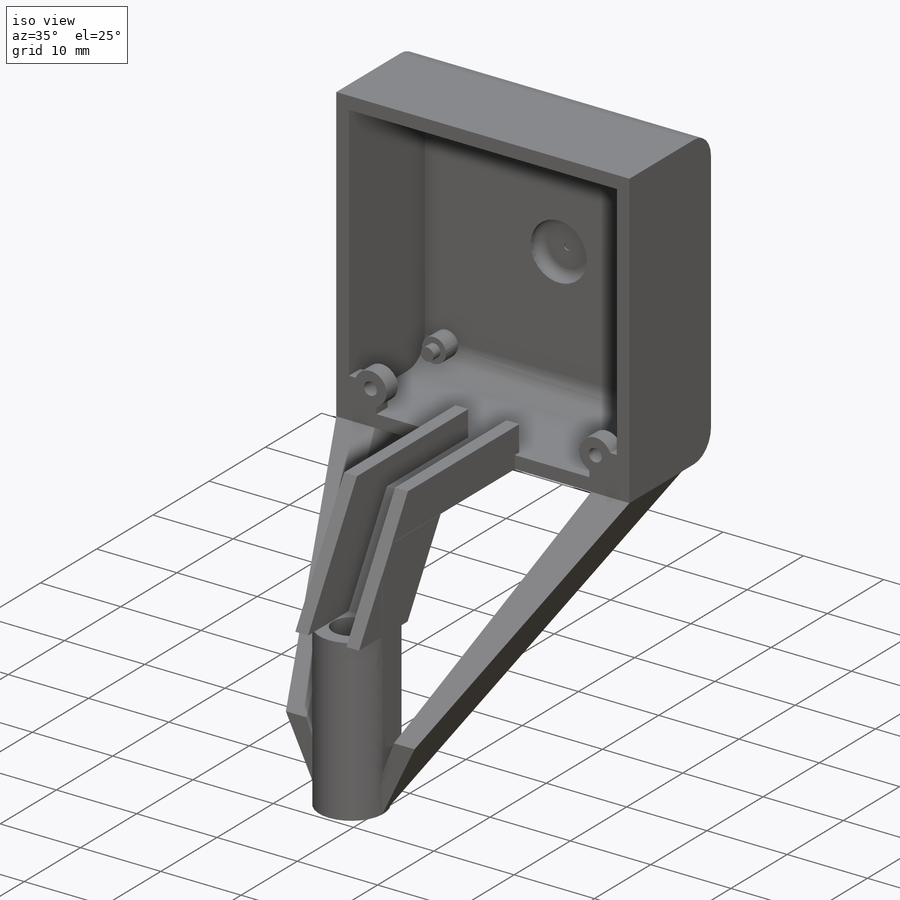
[diagram: iso view]
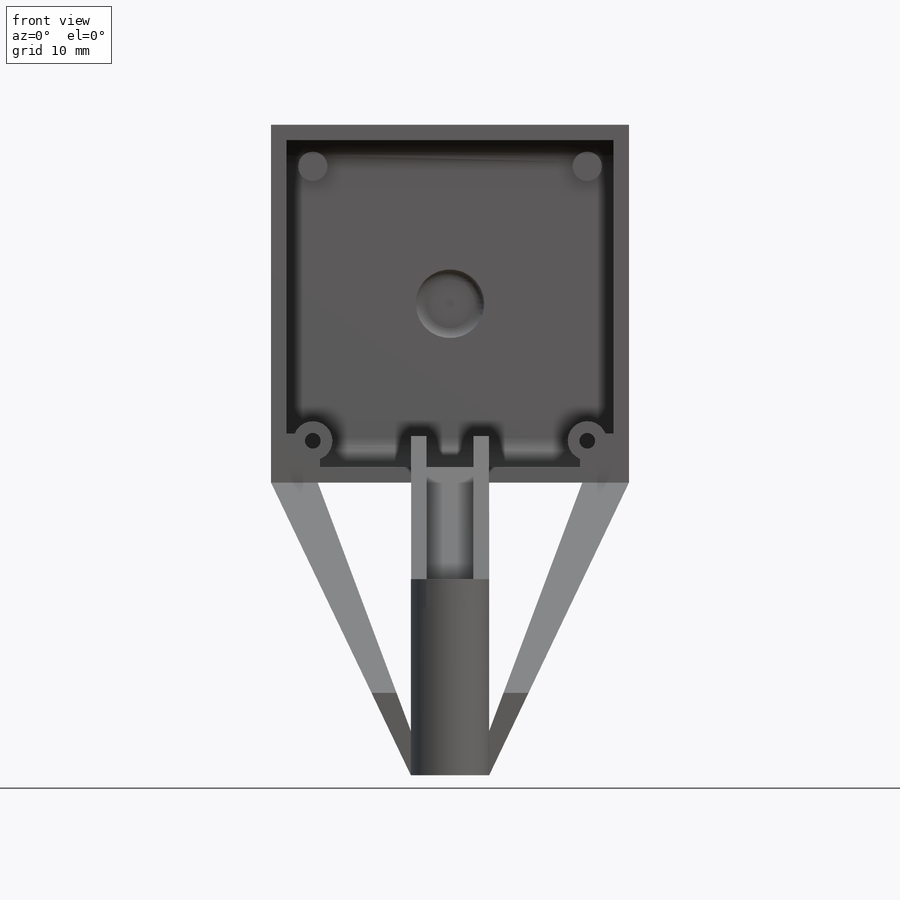
[diagram: front view]
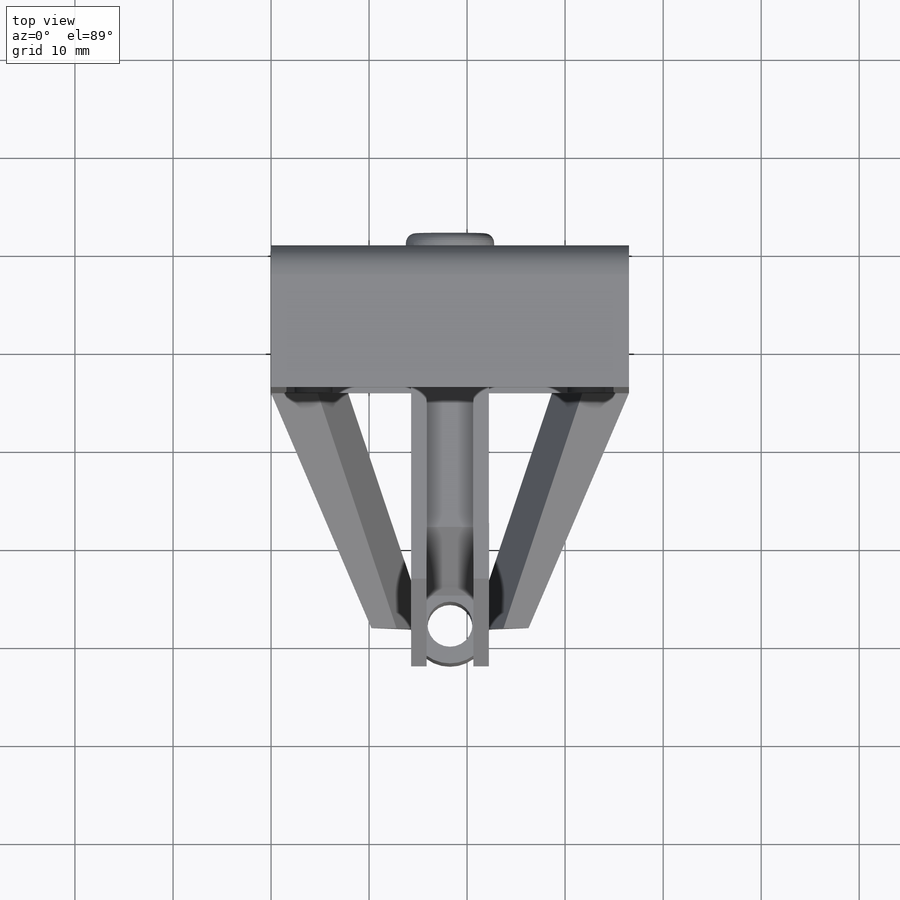
[diagram: top view]
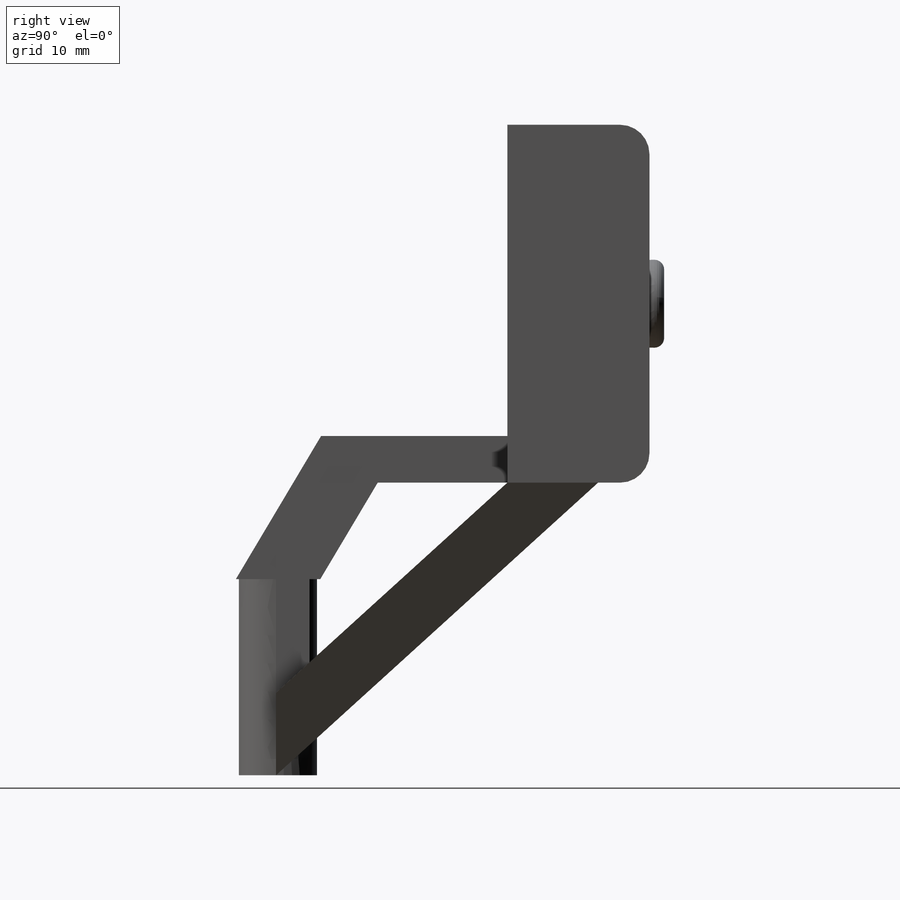
[diagram: right view]
SOLIDWORKS PART (.sldprt)
format: sldprt  version: not decoded by parser v0  size: 612,352 bytes
history: native  units: mm
features: sketch x23, extrude x12, cut_extrude x11, fillet x3, material x1 (+16 scaffold rows collapsed)
feature tree (66):
  scaffold x16  (default folders/planes/origin — collapsed)
  material  "Material <not specified>"
  sketch  "Sketch1"  dims[D1=36.5125mm]
  extrude  "Extrude1"  Depth=1mm
  sketch  "Sketch2"
  extrude  "Extrude2"  Depth=13.5mm
  fillet  "Fillet7"  Radius=3mm
  sketch  "Sketch5"  dims[D5=3.0mm D1=14.0mm D2=14.0mm D3=14.0mm D4=14.0mm]
  extrude  "Extrude5"  Depth=2.2mm
  sketch  "Sketch6"  dims[D1=0.9mm]
  extrude  "Extrude6"  Depth=1.2mm
  sketch  "Sketch7"  dims[D1=9.0mm]
  extrude  "Extrude7"  Depth=2.5mm
  sketch  "Sketch8"  dims[D1=7.0mm]
  cut_extrude  "Extrude9"  Depth=1.5mm
  fillet  "Fillet8"  Radius=1mm
  fillet  "Fillet10"  Radius=1mm
  sketch  "Sketch9"  dims[D1=~0.48236mm]
  cut_extrude  "Extrude10"  Depth=0.2mm
  sketch  "Sketch10"  dims[D1=5.0mm D2=5.0mm D3=5.0mm]
  extrude  "Extrude11"  Depth=2mm
  sketch  "Sketch11"
  extrude  "Extrude12"  Depth=19mm
  sketch  "Sketch13"  dims[D1=8.0mm]
  cut_extrude  "Extrude13"  [1 undecoded]
  sketch  "Sketch14"  dims[D1=7.4mm]
  extrude  "Extrude14"  Depth=17mm
  sketch  "Sketch15"
  cut_extrude  "Extrude15"  [1 undecoded]
  sketch  "Sketch16"  dims[D1=~23.390021mm]
  extrude  "Extrude16"  Depth=20mm
  sketch  "Sketch17"
  extrude  "Extrude17"  Depth=13.5mm
  sketch  "Sketch18"
  extrude  "Extrude18"  [1 undecoded]
  sketch  "Sketch19"
  cut_extrude  "Extrude20"  [1 undecoded]
  sketch  "Sketch20"
  cut_extrude  "Extrude21"  [1 undecoded]
  sketch  "Sketch21"
  cut_extrude  "Extrude22"  [1 undecoded]
  sketch  "Sketch22"
  extrude  "Extrude23"  [1 undecoded]
  sketch  "Sketch23"  dims[D1=4.7625mm D2=4.7625mm]
  cut_extrude  "Extrude24"  [1 undecoded]
  sketch  "Sketch24"
  cut_extrude  "Extrude25"  [1 undecoded]
  sketch  "Sketch25"
  cut_extrude  "Extrude26"  [1 undecoded]
  sketch  "Sketch26"
  cut_extrude  "Extrude27"  [1 undecoded]
decode coverage: 26 of 49 modeling features carry decoded parameters
note: ~ marks probable driven/reference dimensions
note: 11 parameter values undecoded
summary: no parameter record found for 11 features
note: suppression state not decoded; provenance and decode notes live in map.json
